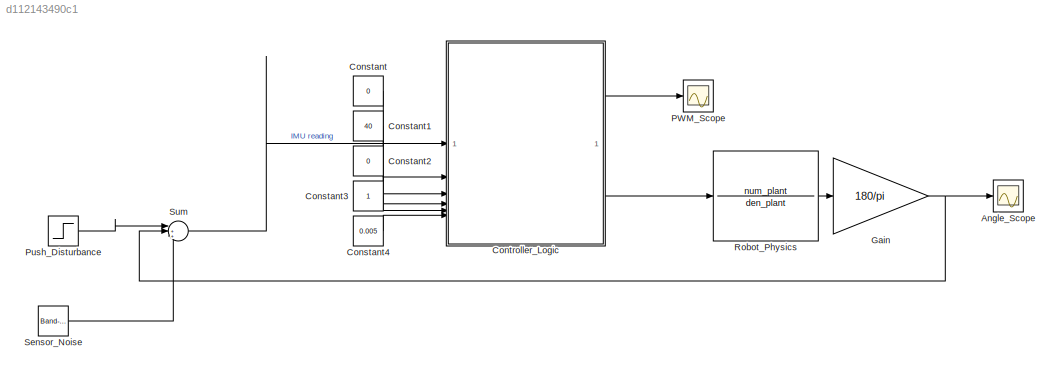
MODEL slx_d112143490c1
KIND model
CONFIG AbsTol = auto
CONFIG EnableMultiTasking = off
CONFIG FixedStep = auto
CONFIG MaxStep = auto
CONFIG MinStep = auto
CONFIG RelTol = 1e-3
CONFIG SampleTimeConstraint = Unconstrained
CONFIG SolverName = VariableStepAuto
CONFIG StartTime = 0.0
CONFIG StopTime = 10.0
BLOCK [Scope] Angle_Scope
  ActiveDisplayYMaximum = 0.18594676460386156
  ActiveDisplayYMinimum = -0.26744846645837289
  Floating = off
  GraphicalSettings = {"Style":{"BackgroundColor":[0.12941176470588237,0.12941176470588237,0.12941176470588237],"AxesColor":[0.07058823529411765,0.07058823529411765,0.07058823529411765],"LabelsColor":[0.8509803921568627,0.8509803921568627,0.8509803921568627],"PreserveColors":false,"Visible":[true],"LineStyle":["-"],"LineWidth":[1.5],"BarWidth":[0.9],"LineColor":["auto"],"LineFaceAlpha":[1],"LineEdgeAlpha":[1],"Marker":...<+1999ch>
  MultipleDisplayCache = [{"MaxYLimMag":0.26744846645837289,"MaxYLimReal":0.18594676460386156,"MinYLimMag":0,"MinYLimReal":-0.26744846645837289,"PlotAsMagnitudePhase":false,"ShowGrid":true,"ShowLegend":false,"Title":"%<SignalLabel>","YLabel":""}]
  NumInputPorts = 1
  ScopeFrameLocation = window
  Visible = on
  WasSavedAsWebScope = on
  WindowPosition = [871.000000,162.000000,560.000000,420.000000,]
BLOCK [Constant] Constant
  Value = 0
BLOCK [Constant] Constant1
  Value = 40
BLOCK [Constant] Constant2
  Value = 0
BLOCK [Constant] Constant3
BLOCK [Constant] Constant4
  Value = 0.005
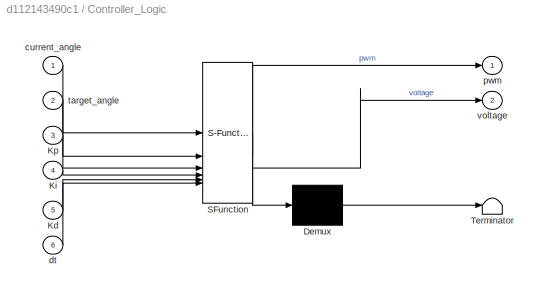
BLOCK [SubSystem] Controller_Logic
  ErrorFcn = Stateflow.Translate.translate
  PermitHierarchicalResolution = ExplicitOnly
  SFBlockType = MATLAB Function
  SystemSampleTime = 0.005
  TreatAsAtomicUnit = on
BLOCK [Demux] Controller_Logic/ Demux 
  Outputs = 1
BLOCK [S-Function] Controller_Logic/ SFunction 
  EnableBusSupport = off
  FunctionName = sf_sfun
  PortCounts = [6 3]
  SFcnIsStateOwnerBlock = off
  SFunctionDeploymentMode = off
  Tag = Stateflow S-Function 2
BLOCK [Terminator] Controller_Logic/ Terminator 
BLOCK [Inport] Controller_Logic/Kd
  Port = 5
BLOCK [Inport] Controller_Logic/Ki
  Port = 4
BLOCK [Inport] Controller_Logic/Kp
  Port = 3
BLOCK [Inport] Controller_Logic/current_angle
BLOCK [Inport] Controller_Logic/dt
  Port = 6
BLOCK [Outport] Controller_Logic/pwm
BLOCK [Inport] Controller_Logic/target_angle
  Port = 2
BLOCK [Outport] Controller_Logic/voltage
  Port = 2
BLOCK [Gain] Gain
  Gain = 180/pi
BLOCK [Scope] PWM_Scope
  ActiveDisplayYMaximum = 52.899850161116674
  ActiveDisplayYMinimum = -50.782601244972525
  Floating = off
  GraphicalSettings = {"Style":{"BackgroundColor":[0.12941176470588237,0.12941176470588237,0.12941176470588237],"AxesColor":[0.07058823529411765,0.07058823529411765,0.07058823529411765],"LabelsColor":[0.8509803921568627,0.8509803921568627,0.8509803921568627],"PreserveColors":false,"Visible":[true],"LineStyle":["-"],"LineWidth":[1.5],"BarWidth":[0.9],"LineColor":["auto"],"LineFaceAlpha":[1],"LineEdgeAlpha":[1],"Marker":...<+2024ch>
  MultipleDisplayCache = [{"MaxYLimMag":52.899850161116674,"MaxYLimReal":52.899850161116674,"MinYLimMag":0,"MinYLimReal":-50.782601244972525,"PlotAsMagnitudePhase":false,"ShowGrid":true,"ShowLegend":false,"Title":"%<SignalLabel>","YLabel":""}]
  NumInputPorts = 1
  ScopeFrameLocation = window
  Visible = on
  WasSavedAsWebScope = on
  WindowPosition = [230.000000,162.000000,560.000000,420.000000,]
BLOCK [Step] Push_Disturbance
  After = 0
  SampleTime = 0
BLOCK [TransferFcn] Robot_Physics
  Denominator = den_plant
  Numerator = num_plant
BLOCK [Reference] Sensor_Noise  REF=simulink/Sources/Band-Limited
White Noise
  SourceBlock = simulink/Sources/Band-Limited\nWhite Noise
  SourceType = Band-Limited White Noise.
BLOCK [Sum] Sum
  Inputs = |+++
LINE Constant1:1 -> Controller_Logic:3
LINE Constant2:1 -> Controller_Logic:4
LINE Constant3:1 -> Controller_Logic:5
LINE Constant4:1 -> Controller_Logic:6
LINE Constant:1 -> Controller_Logic:2
LINE Controller_Logic:1 -> PWM_Scope:1
LINE Controller_Logic:2 -> Robot_Physics:1
NET Gain:1 -> Angle_Scope:1, Sum:2
LINE Push_Disturbance:1 -> Sum:1
LINE Robot_Physics:1 -> Gain:1
LINE Sensor_Noise:1 -> Sum:3
LINE Sum:1 -> Controller_Logic:1
note: NET lines group one-source signal fan-out (src -> all destinations, sorted); 1:1 wires keep LINE
CHART Controller_Logic states=1 transitions=1
  STATE_LABEL 'eML_blk_kernel()'
  STATE_LABEL "SCRIPT:\nfunction [pwm, voltage] = Controller_Logic(current_angle, target_angle, Kp, Ki, Kd, dt)\n    % PERSISTENT VARIABLES (Memory like 'static' in C++)\n    persistent errorSum lastError\n    if isempty(errorSum)\n        errorSum = 0;\n        lastError = 0;\n    end\n\n    % 1. ERROR CALC\n    error = target_angle - current_angle;\n    \n    % 2. INTEGRAL (with anti-windup from your code)\n    errorSum = ...<+968ch>"
CHART  states=0 transitions=0
